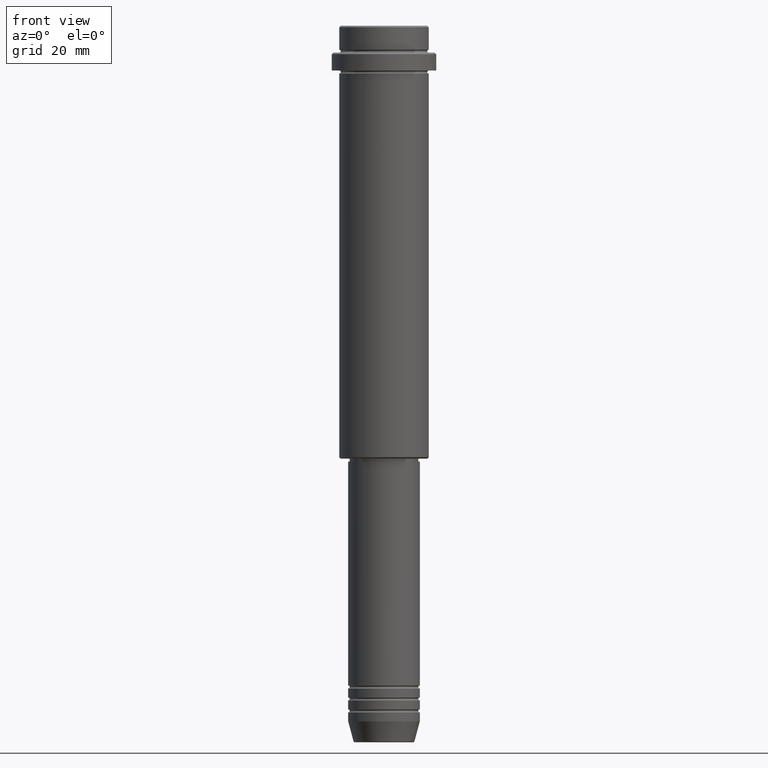
[diagram: clean part render]
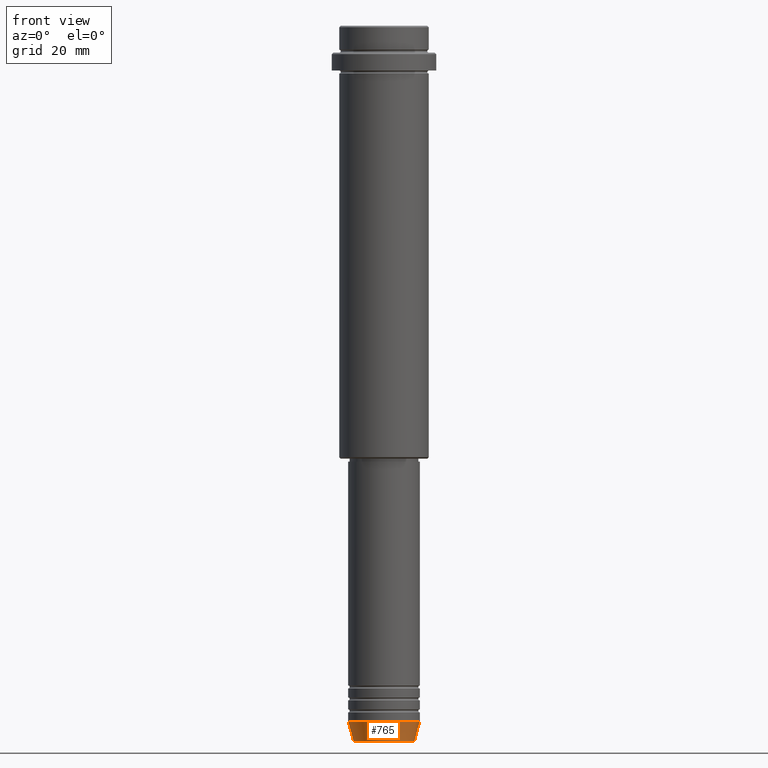
[diagram: same view with one face highlighted and labeled with its STEP entity id]
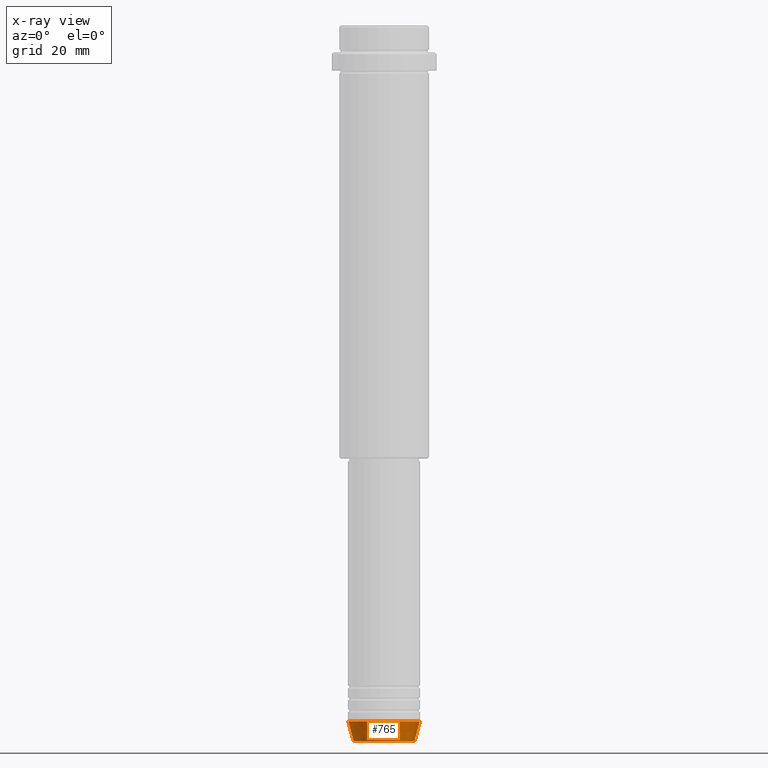
[diagram: x-ray of the same camera — body ghosted, the highlighted face saturated]
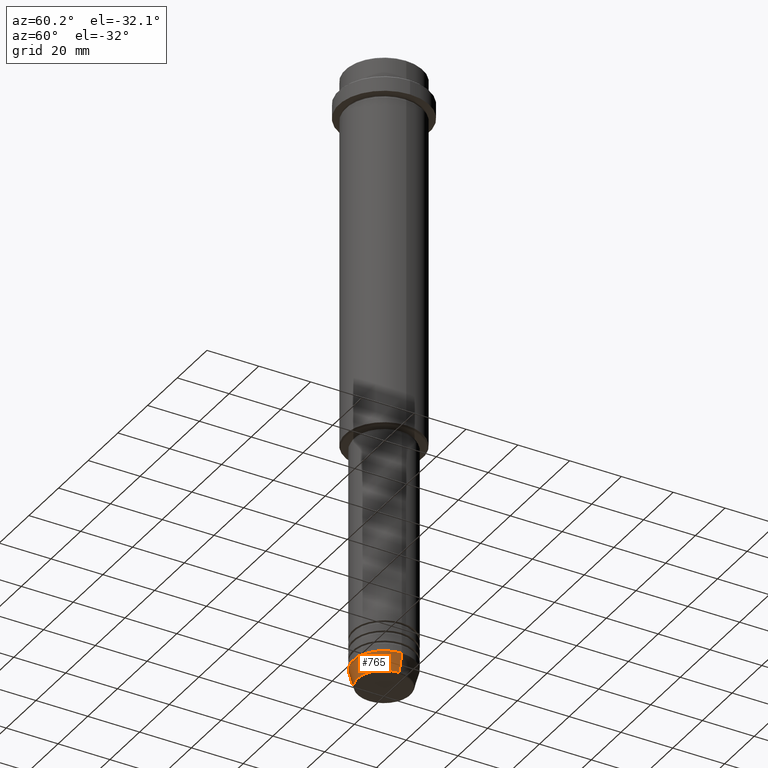
[diagram: same view with one face highlighted and labeled with its STEP entity id]
A machine part, front view. The second image highlights one B-rep face of the part: STEP entity #765.
The next image is the same camera in x-ray: the body ghosted, the highlighted face saturated — about 0% of this face is hidden behind the body in this view.
A second angle (auxiliary view) of the same face is appended — the face is thin or edge-on in the first view.
In plain terms, the highlighted conical surface has half-angle 15 deg.
Its self-contained STEP definition (entity closure, byte-faithful):
#44 = LINE ( 'NONE', #136, #993 ) ;
#70 = ORIENTED_EDGE ( 'NONE', *, *, #839, .F. ) ;
#123 = FACE_OUTER_BOUND ( 'NONE', #556, .T. ) ;
#136 = CARTESIAN_POINT ( 'NONE',  ( -12.00000000000000000, 1.469576158976823947E-15, -232.9999999999999716 ) ) ;
#211 = DIRECTION ( 'NONE',  ( 0.2588190451025213501, 0.000000000000000000, 0.9659258262890680902 ) ) ;
#374 = EDGE_CURVE ( 'NONE', #1223, #1088, #44, .T. ) ;
#401 = AXIS2_PLACEMENT_3D ( 'NONE', #791, #1126, #1347 ) ;
#439 = CARTESIAN_POINT ( 'NONE',  ( 12.00000000000000000, 0.000000000000000000, -232.9999999999999716 ) ) ;
#445 = CARTESIAN_POINT ( 'NONE',  ( -10.22365507213719127, 1.360806402472382744E-15, -239.6294095225512422 ) ) ;
#464 = DIRECTION ( 'NONE',  ( -0.2588190451025213501, 3.169619151431772337E-17, 0.9659258262890680902 ) ) ;
#521 = AXIS2_PLACEMENT_3D ( 'NONE', #686, #582, #896 ) ;
#556 = EDGE_LOOP ( 'NONE', ( #1120, #1203, #732, #70 ) ) ;
#582 = DIRECTION ( 'NONE',  ( -0.000000000000000000, -0.000000000000000000, 1.000000000000000000 ) ) ;
#686 = CARTESIAN_POINT ( 'NONE',  ( 0.000000000000000000, 0.000000000000000000, -232.9999999999999716 ) ) ;
#721 = AXIS2_PLACEMENT_3D ( 'NONE', #1206, #916, #1334 ) ;
#732 = ORIENTED_EDGE ( 'NONE', *, *, #1111, .T. ) ;
#765 = ADVANCED_FACE ( 'NONE', ( #123 ), #1131, .T. ) ;
#768 = EDGE_CURVE ( 'NONE', #1223, #984, #1267, .T. ) ;
#791 = CARTESIAN_POINT ( 'NONE',  ( 0.000000000000000000, 0.000000000000000000, -232.9999999999999716 ) ) ;
#839 = EDGE_CURVE ( 'NONE', #1088, #1193, #952, .T. ) ;
#871 = CARTESIAN_POINT ( 'NONE',  ( -12.00000000000000000, 1.469576158976823947E-15, -232.9999999999999716 ) ) ;
#896 = DIRECTION ( 'NONE',  ( 1.000000000000000000, 0.000000000000000000, 0.000000000000000000 ) ) ;
#916 = DIRECTION ( 'NONE',  ( -0.000000000000000000, -0.000000000000000000, 1.000000000000000000 ) ) ;
#952 = CIRCLE ( 'NONE', #521, 12.00000000000000000 ) ;
#984 = VERTEX_POINT ( 'NONE', #1377 ) ;
#993 = VECTOR ( 'NONE', #464, 1000.000000000000000 ) ;
#1088 = VERTEX_POINT ( 'NONE', #871 ) ;
#1111 = EDGE_CURVE ( 'NONE', #984, #1193, #1161, .T. ) ;
#1115 = VECTOR ( 'NONE', #211, 1000.000000000000000 ) ;
#1120 = ORIENTED_EDGE ( 'NONE', *, *, #374, .F. ) ;
#1126 = DIRECTION ( 'NONE',  ( -0.000000000000000000, -0.000000000000000000, 1.000000000000000000 ) ) ;
#1131 = CONICAL_SURFACE ( 'NONE', #401, 12.00000000000000000, 0.2617993877991500740 ) ;
#1161 = LINE ( 'NONE', #1179, #1115 ) ;
#1179 = CARTESIAN_POINT ( 'NONE',  ( 12.00000000000000000, 0.000000000000000000, -232.9999999999999716 ) ) ;
#1193 = VERTEX_POINT ( 'NONE', #439 ) ;
#1203 = ORIENTED_EDGE ( 'NONE', *, *, #768, .T. ) ;
#1206 = CARTESIAN_POINT ( 'NONE',  ( 0.000000000000000000, 0.000000000000000000, -239.6294095225512422 ) ) ;
#1223 = VERTEX_POINT ( 'NONE', #445 ) ;
#1267 = CIRCLE ( 'NONE', #721, 10.22365507213719127 ) ;
#1334 = DIRECTION ( 'NONE',  ( 1.000000000000000000, 0.000000000000000000, 0.000000000000000000 ) ) ;
#1347 = DIRECTION ( 'NONE',  ( 1.000000000000000000, 0.000000000000000000, 0.000000000000000000 ) ) ;
#1377 = CARTESIAN_POINT ( 'NONE',  ( 10.22365507213719127, 0.000000000000000000, -239.6294095225512422 ) ) ;